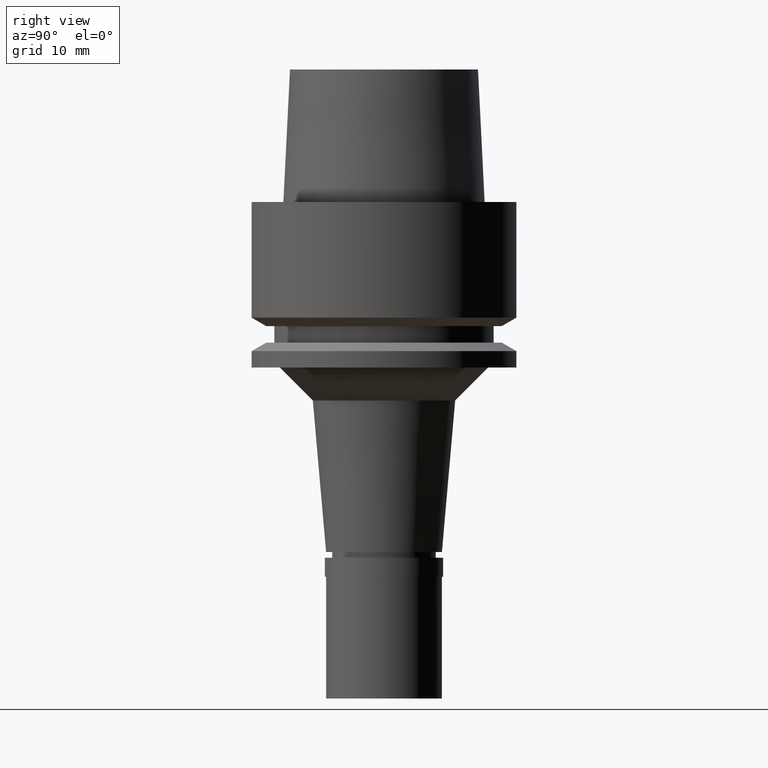
[diagram: clean part render]
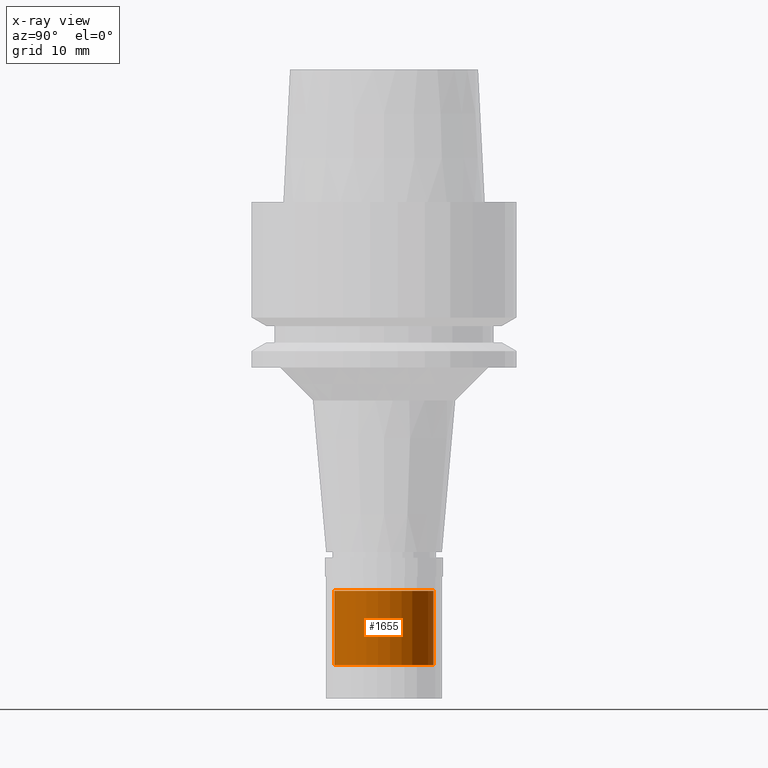
[diagram: x-ray — body ghosted, one internal face saturated and labeled with its STEP entity id]
A machine part, right view, then the same camera in x-ray: the body is ghosted and one INTERNAL B-rep face — a face not visible from any outside direction — is saturated and labeled: STEP entity #1655.
In plain terms, the highlighted cylindrical surface (partial cylindrical patch) has radius 6 mm, axis along (0, 0, -1).
Its self-contained STEP definition (entity closure, byte-faithful):
#31 = EDGE_CURVE ( 'NONE', #2485, #1832, #1056, .T. ) ;
#48 = DIRECTION ( 'NONE',  ( 0.0000000000000000000, -1.000000000000000000, 0.0000000000000000000 ) ) ;
#108 = AXIS2_PLACEMENT_3D ( 'NONE', #2329, #262, #48 ) ;
#113 = CARTESIAN_POINT ( 'NONE',  ( 0.0000000000000000000, 0.0000000000000000000, -56.00000000000000000 ) ) ;
#143 = DIRECTION ( 'NONE',  ( 0.0000000000000000000, 0.0000000000000000000, -1.000000000000000000 ) ) ;
#207 = CYLINDRICAL_SURFACE ( 'NONE', #108, 6.000000000000000000 ) ;
#262 = DIRECTION ( 'NONE',  ( 0.0000000000000000000, 0.0000000000000000000, -1.000000000000000000 ) ) ;
#268 = ORIENTED_EDGE ( 'NONE', *, *, #31, .T. ) ;
#285 = AXIS2_PLACEMENT_3D ( 'NONE', #113, #2171, #2185 ) ;
#496 = CARTESIAN_POINT ( 'NONE',  ( 0.0000000000000000000, 6.000000000000000000, -56.00000000000000000 ) ) ;
#581 = DIRECTION ( 'NONE',  ( 0.0000000000000000000, 1.000000000000000000, 0.0000000000000000000 ) ) ;
#629 = DIRECTION ( 'NONE',  ( 0.0000000000000000000, 0.0000000000000000000, -1.000000000000000000 ) ) ;
#741 = ORIENTED_EDGE ( 'NONE', *, *, #2422, .T. ) ;
#849 = CARTESIAN_POINT ( 'NONE',  ( 0.0000000000000000000, -6.000000000000000000, -47.00000000000000000 ) ) ;
#1056 = LINE ( 'NONE', #849, #1158 ) ;
#1158 = VECTOR ( 'NONE', #1697, 1000.000000000000000 ) ;
#1238 = ORIENTED_EDGE ( 'NONE', *, *, #1811, .T. ) ;
#1249 = AXIS2_PLACEMENT_3D ( 'NONE', #1372, #143, #581 ) ;
#1372 = CARTESIAN_POINT ( 'NONE',  ( 0.0000000000000000000, 0.0000000000000000000, -47.00000000000000000 ) ) ;
#1449 = EDGE_LOOP ( 'NONE', ( #1238, #268, #741, #1606 ) ) ;
#1505 = VERTEX_POINT ( 'NONE', #2501 ) ;
#1529 = EDGE_CURVE ( 'NONE', #1505, #2279, #1878, .T. ) ;
#1606 = ORIENTED_EDGE ( 'NONE', *, *, #1529, .F. ) ;
#1655 = ADVANCED_FACE ( 'NONE', ( #2505 ), #207, .T. ) ;
#1697 = DIRECTION ( 'NONE',  ( 0.0000000000000000000, 0.0000000000000000000, -1.000000000000000000 ) ) ;
#1811 = EDGE_CURVE ( 'NONE', #1505, #2485, #2434, .T. ) ;
#1832 = VERTEX_POINT ( 'NONE', #2603 ) ;
#1853 = VECTOR ( 'NONE', #629, 1000.000000000000000 ) ;
#1878 = LINE ( 'NONE', #2028, #1853 ) ;
#2028 = CARTESIAN_POINT ( 'NONE',  ( 0.0000000000000000000, 6.000000000000000000, -47.00000000000000000 ) ) ;
#2171 = DIRECTION ( 'NONE',  ( 0.0000000000000000000, 0.0000000000000000000, 1.000000000000000000 ) ) ;
#2185 = DIRECTION ( 'NONE',  ( 0.0000000000000000000, -1.000000000000000000, 0.0000000000000000000 ) ) ;
#2201 = CARTESIAN_POINT ( 'NONE',  ( 0.0000000000000000000, -6.000000000000000000, -47.00000000000000000 ) ) ;
#2279 = VERTEX_POINT ( 'NONE', #496 ) ;
#2329 = CARTESIAN_POINT ( 'NONE',  ( 0.0000000000000000000, 0.0000000000000000000, 19.59999999999999787 ) ) ;
#2422 = EDGE_CURVE ( 'NONE', #1832, #2279, #2555, .T. ) ;
#2434 = CIRCLE ( 'NONE', #1249, 6.000000000000000000 ) ;
#2485 = VERTEX_POINT ( 'NONE', #2201 ) ;
#2501 = CARTESIAN_POINT ( 'NONE',  ( 0.0000000000000000000, 6.000000000000000000, -47.00000000000000000 ) ) ;
#2505 = FACE_OUTER_BOUND ( 'NONE', #1449, .T. ) ;
#2555 = CIRCLE ( 'NONE', #285, 6.000000000000000000 ) ;
#2603 = CARTESIAN_POINT ( 'NONE',  ( 0.0000000000000000000, -6.000000000000000000, -56.00000000000000000 ) ) ;